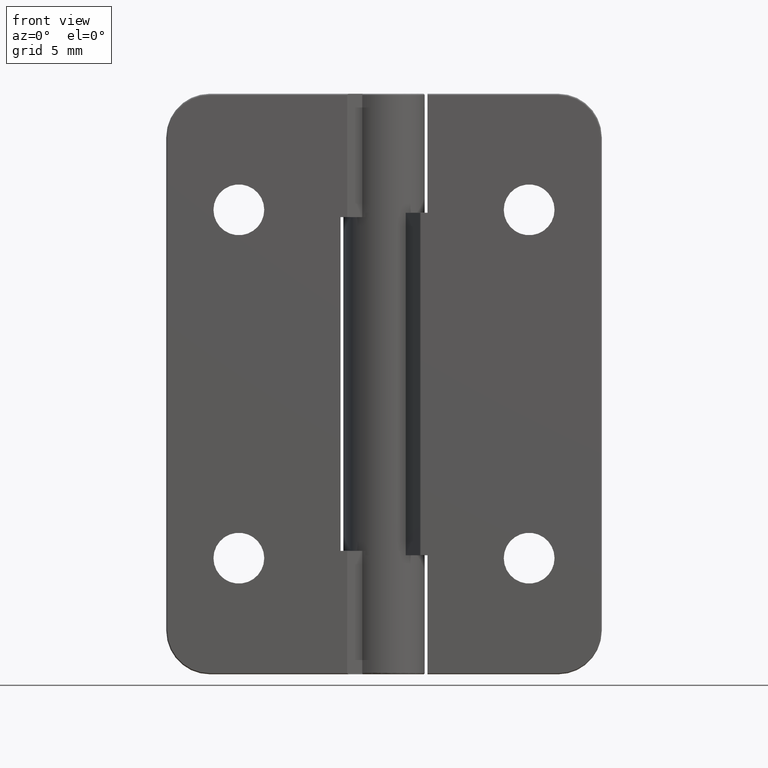
[diagram: clean part render]
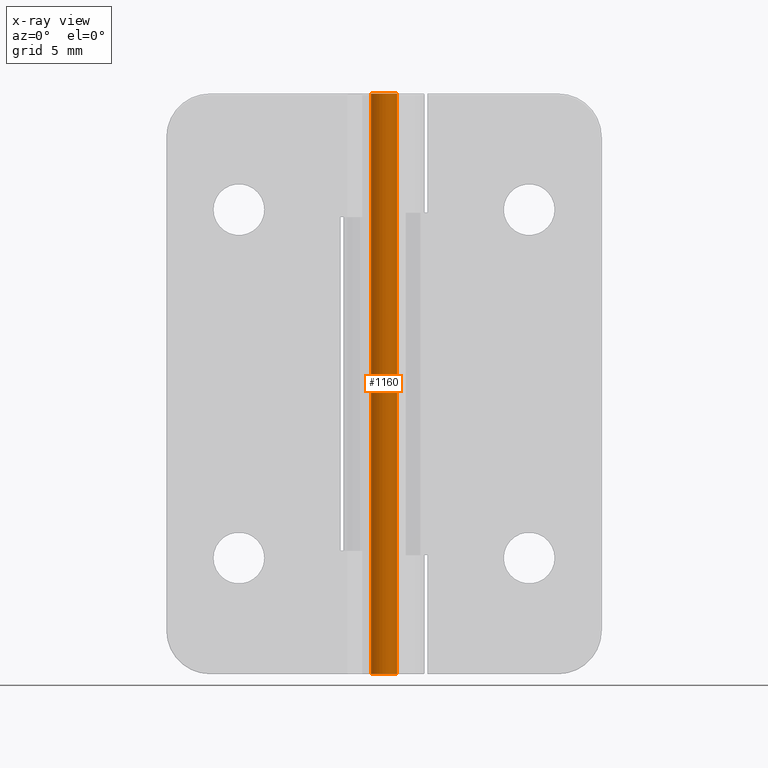
[diagram: x-ray — body ghosted, one internal face saturated and labeled with its STEP entity id]
A machine part, front view, then the same camera in x-ray: the body is ghosted and one INTERNAL B-rep face — a face not visible from any outside direction — is saturated and labeled: STEP entity #1160.
In plain terms, the highlighted cylindrical surface (bore or boss wall) has radius 0.9 mm, axis along (0, 0, 1).
Its self-contained STEP definition (entity closure, byte-faithful):
#89=CYLINDRICAL_SURFACE('',#1320,0.9);
#115=FACE_BOUND('',#362,.T.);
#194=CIRCLE('',#1319,0.9);
#195=CIRCLE('',#1321,0.9);
#265=FACE_OUTER_BOUND('',#361,.T.);
#361=EDGE_LOOP('',(#1066));
#362=EDGE_LOOP('',(#1067));
#602=VERTEX_POINT('',#2063);
#603=VERTEX_POINT('',#2066);
#757=EDGE_CURVE('',#602,#602,#194,.T.);
#758=EDGE_CURVE('',#603,#603,#195,.T.);
#1066=ORIENTED_EDGE('',*,*,#757,.F.);
#1067=ORIENTED_EDGE('',*,*,#758,.F.);
#1160=ADVANCED_FACE('',(#265,#115),#89,.T.);
#1319=AXIS2_PLACEMENT_3D('',#2064,#1704,#1705);
#1320=AXIS2_PLACEMENT_3D('',#2065,#1706,#1707);
#1321=AXIS2_PLACEMENT_3D('',#2067,#1708,#1709);
#1704=DIRECTION('center_axis',(0.,0.,-1.));
#1705=DIRECTION('ref_axis',(-1.,0.,0.));
#1706=DIRECTION('center_axis',(0.,0.,1.));
#1707=DIRECTION('ref_axis',(-1.,0.,0.));
#1708=DIRECTION('center_axis',(0.,0.,1.));
#1709=DIRECTION('ref_axis',(-1.,0.,0.));
#2063=CARTESIAN_POINT('',(0.9,1.10218211923262E-16,-20.));
#2064=CARTESIAN_POINT('Origin',(0.,0.,-20.));
#2065=CARTESIAN_POINT('Origin',(0.,0.,0.));
#2066=CARTESIAN_POINT('',(0.9,1.10218211923262E-16,20.));
#2067=CARTESIAN_POINT('Origin',(0.,0.,20.));